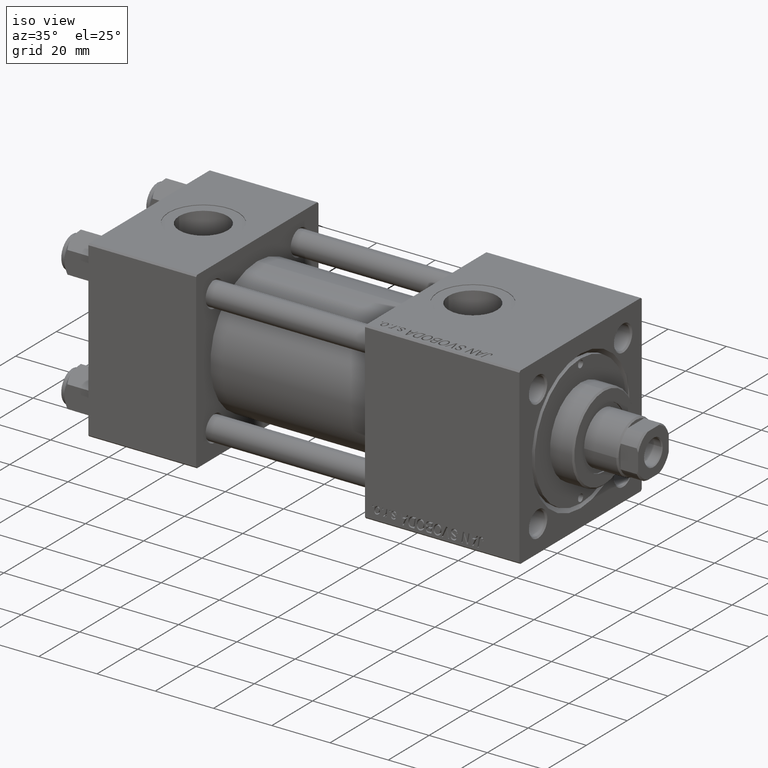
[diagram: clean part render]
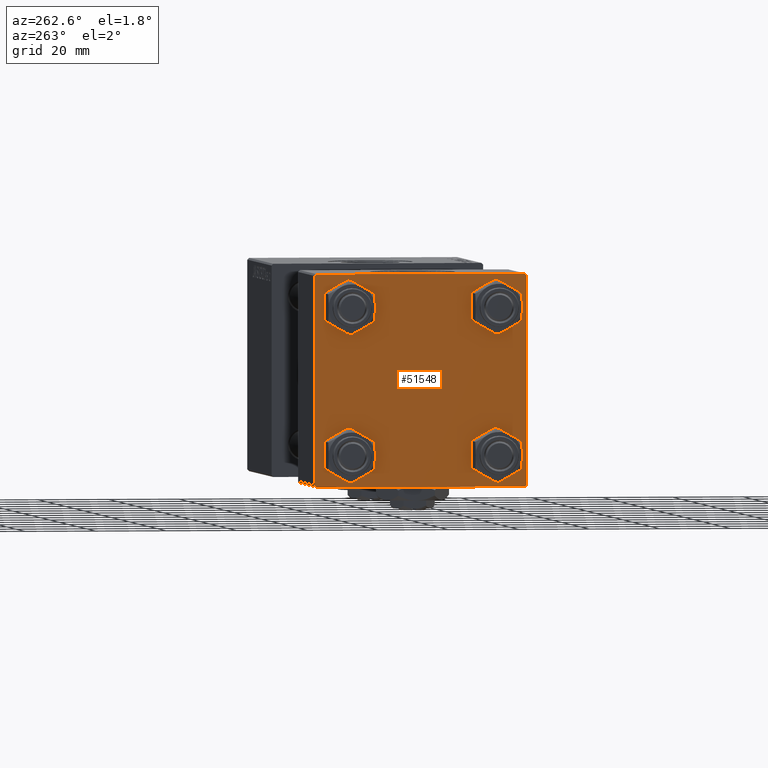
[diagram: tour spotlight — one face highlighted and labeled with its STEP entity id]
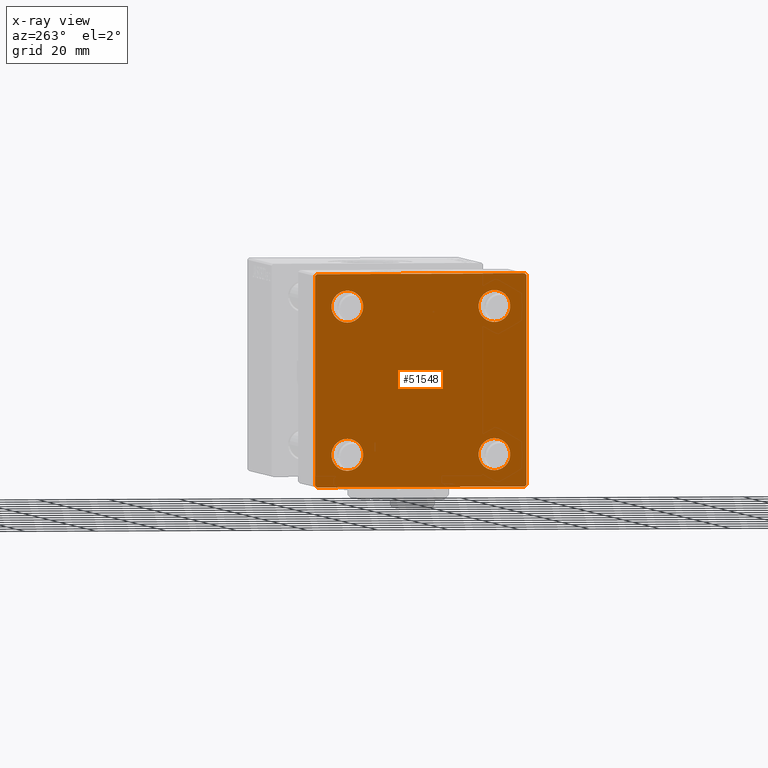
[diagram: x-ray of the same camera — body ghosted, this tour face saturated]
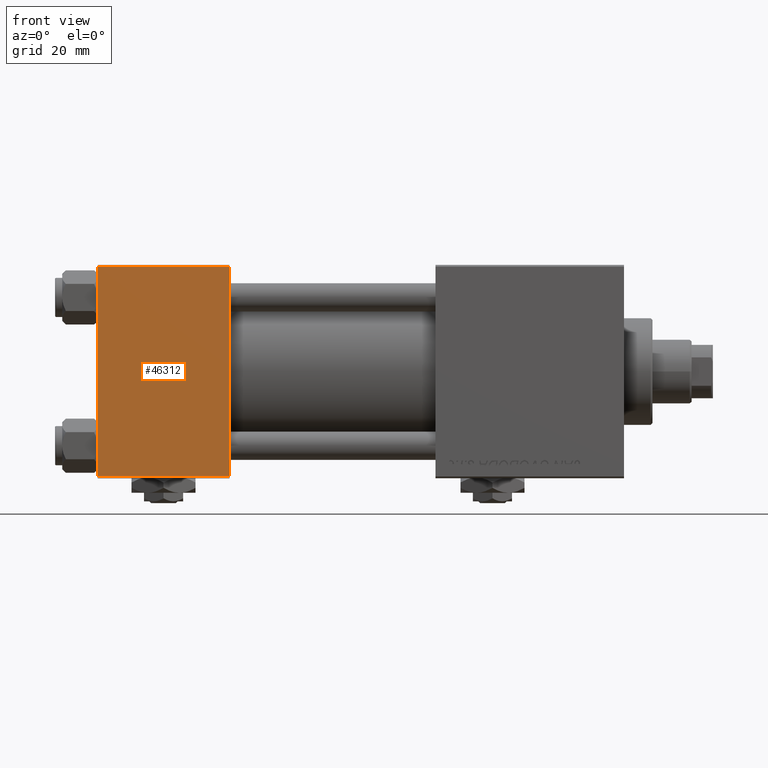
[diagram: tour spotlight — one face highlighted and labeled with its STEP entity id]
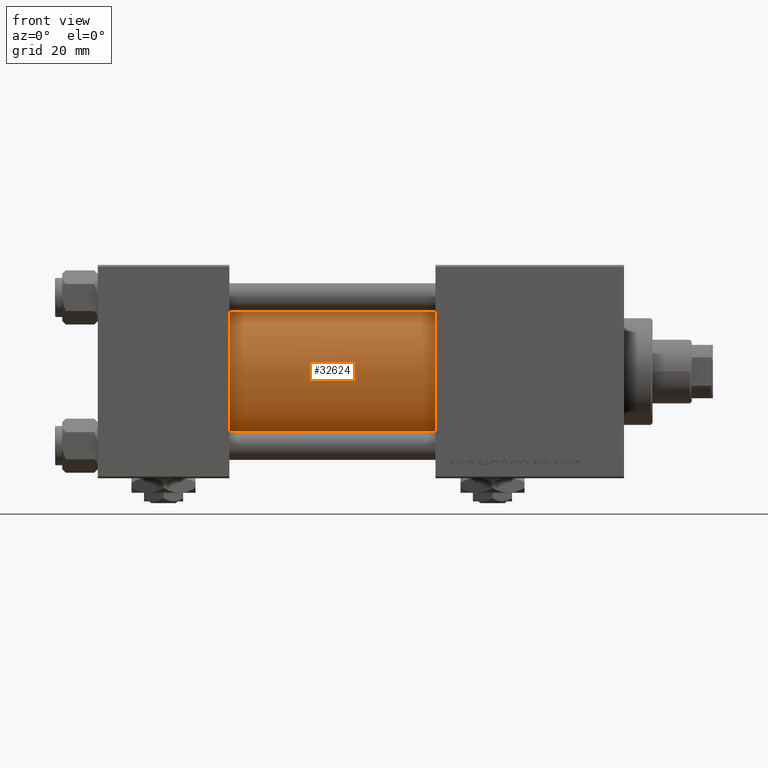
[diagram: tour spotlight — one face highlighted and labeled with its STEP entity id]
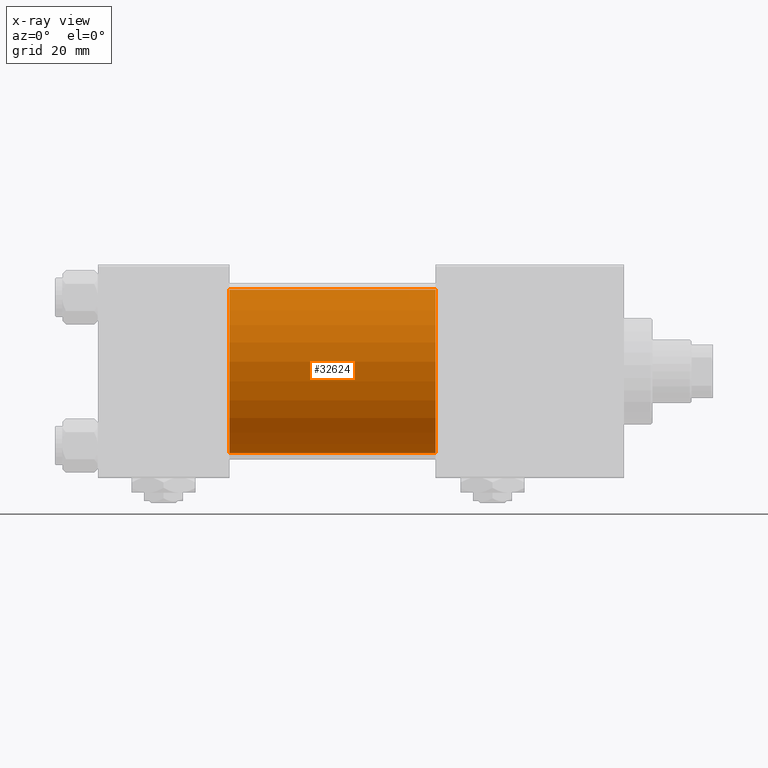
[diagram: x-ray of the same camera — body ghosted, this tour face saturated]
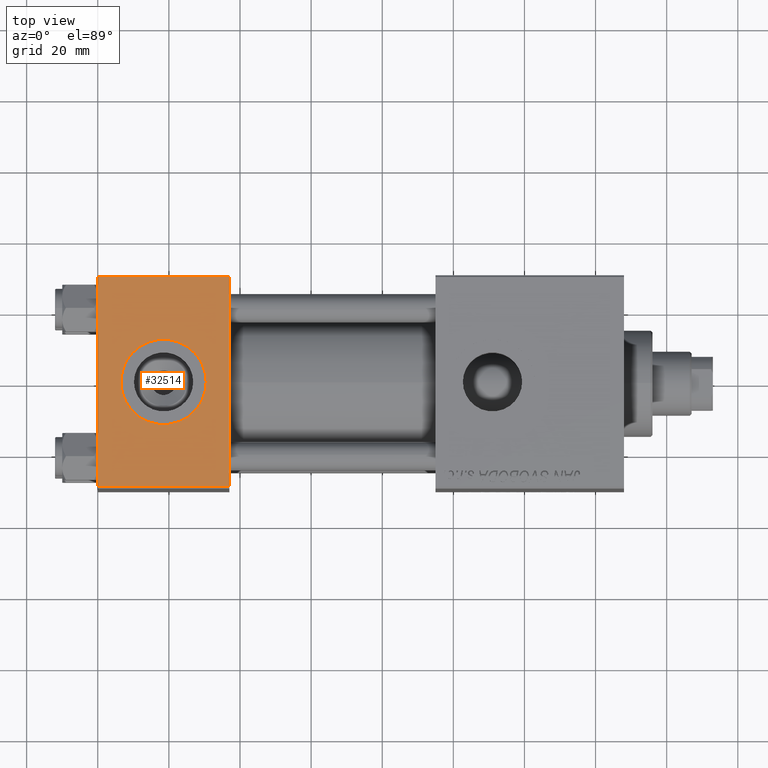
[diagram: tour spotlight — one face highlighted and labeled with its STEP entity id]
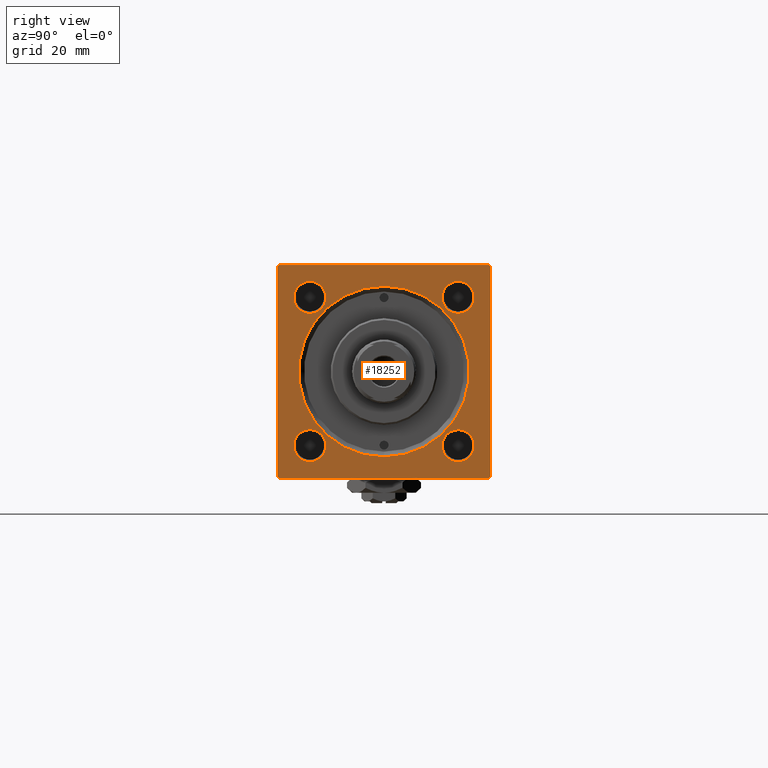
[diagram: tour spotlight — one face highlighted and labeled with its STEP entity id]
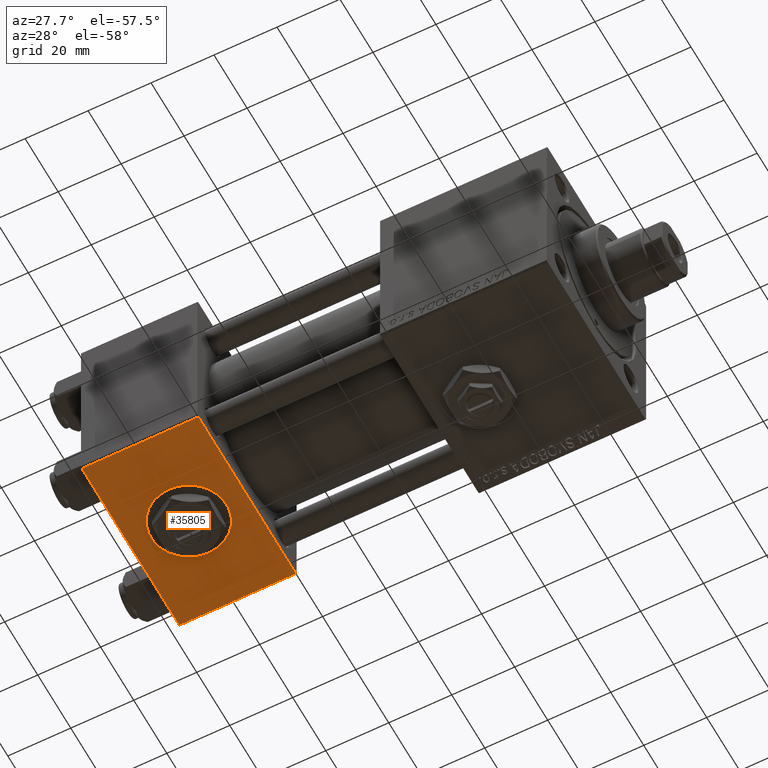
[diagram: tour spotlight — one face highlighted and labeled with its STEP entity id]
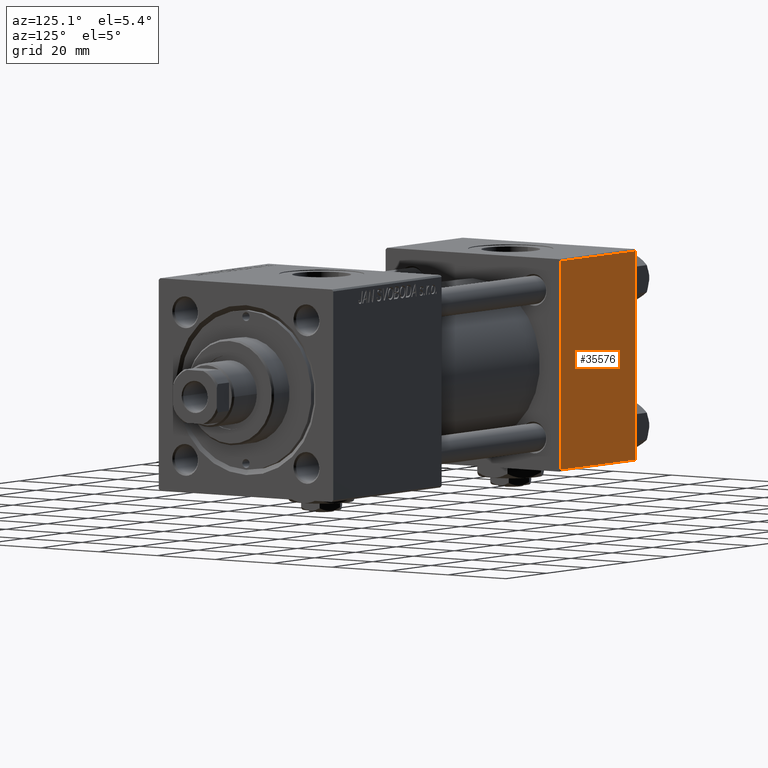
[diagram: tour spotlight — one face highlighted and labeled with its STEP entity id]
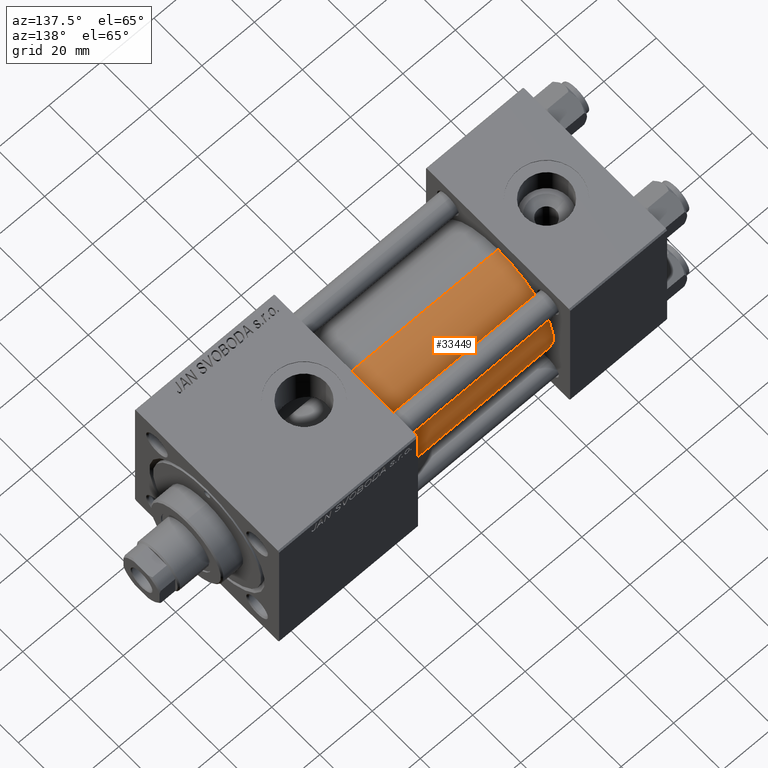
[diagram: tour spotlight — one face highlighted and labeled with its STEP entity id]
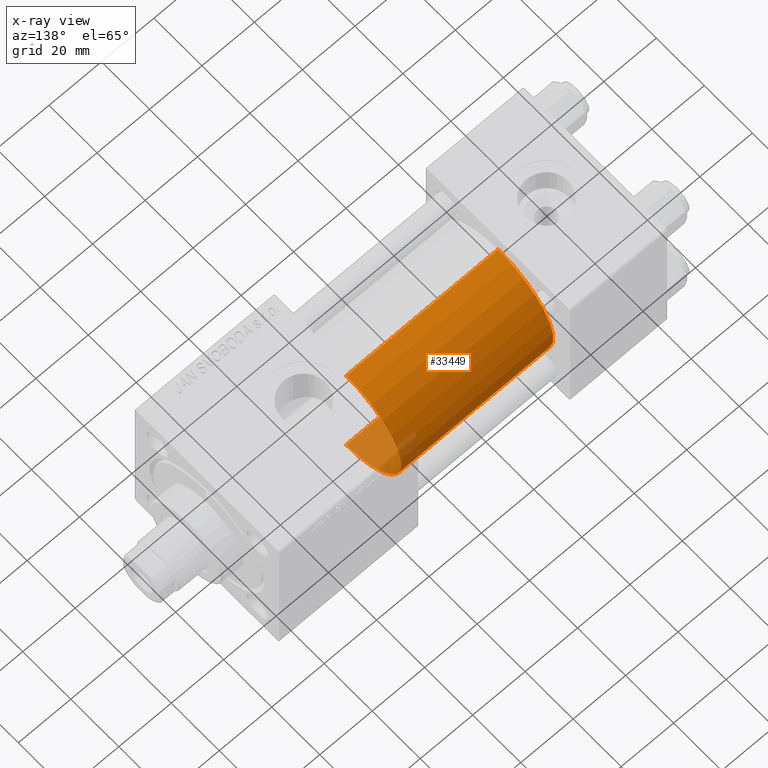
[diagram: x-ray of the same camera — body ghosted, this tour face saturated]
A machine part: a face-by-face anatomy tour. The part has 1256 B-rep faces; the first image is the clean iso view, then the 8 largest visible faces are spotlighted one at a time (largest first), each with its STEP entity span.

Face 1 — auxiliary view, entity #51548. An x-ray twin of the same camera follows (body ghosted, this face saturated) — the face is partly hidden behind the body. In plain terms, the highlighted planar face has unit normal (-1, 0, 0).
Definition (entity closure, byte-faithful):
#340 = ORIENTED_EDGE ( 'NONE', *, *, #52001, .T. ) ;
#379 = EDGE_LOOP ( 'NONE', ( #22754, #35350 ) ) ;
#528 = ORIENTED_EDGE ( 'NONE', *, *, #39811, .T. ) ;
#784 = CARTESIAN_POINT ( 'NONE',  ( 0.000000000000000000, -29.50000000000000000, -30.00000000000000711 ) ) ;
#1900 = DIRECTION ( 'NONE',  ( 0.000000000000000000, -0.7071067811865474617, 0.7071067811865474617 ) ) ;
#2128 = VERTEX_POINT ( 'NONE', #10008 ) ;
#2637 = EDGE_CURVE ( 'NONE', #37914, #6135, #29217, .T. ) ;
#2996 = ORIENTED_EDGE ( 'NONE', *, *, #17362, .T. ) ;
#4506 = EDGE_CURVE ( 'NONE', #25373, #28655, #20069, .T. ) ;
#4970 = VERTEX_POINT ( 'NONE', #18063 ) ;
#5942 = DIRECTION ( 'NONE',  ( -1.000000000000000000, 0.000000000000000000, -0.000000000000000000 ) ) ;
#6103 = EDGE_CURVE ( 'NONE', #12463, #23839, #35269, .T. ) ;
#6135 = VERTEX_POINT ( 'NONE', #9384 ) ;
#6545 = VECTOR ( 'NONE', #16298, 999.9999999999998863 ) ;
#6995 = EDGE_CURVE ( 'NONE', #45923, #25373, #22163, .T. ) ;
#7185 = LINE ( 'NONE', #11412, #45875 ) ;
#7628 = CARTESIAN_POINT ( 'NONE',  ( 0.000000000000000000, 20.84999999999999787, 25.35000000000001918 ) ) ;
#7951 = CIRCLE ( 'NONE', #13878, 4.500000000000017764 ) ;
#8419 = DIRECTION ( 'NONE',  ( 0.000000000000000000, 0.000000000000000000, 1.000000000000000000 ) ) ;
#8854 = CARTESIAN_POINT ( 'NONE',  ( -0.000000000000000000, -29.74999999999999645, 29.74999999999999645 ) ) ;
#9384 = CARTESIAN_POINT ( 'NONE',  ( 0.000000000000000000, 20.84999999999999787, -16.34999999999998366 ) ) ;
#9691 = ORIENTED_EDGE ( 'NONE', *, *, #43137, .T. ) ;
#10008 = CARTESIAN_POINT ( 'NONE',  ( 0.000000000000000000, -30.00000000000000000, 29.49999999999999289 ) ) ;
#10224 = CARTESIAN_POINT ( 'NONE',  ( 0.000000000000000000, 29.74999999999957723, -29.75000000000040501 ) ) ;
#10683 = DIRECTION ( 'NONE',  ( 0.000000000000000000, -1.000000000000000000, -1.156482317317871725E-16 ) ) ;
#11143 = ORIENTED_EDGE ( 'NONE', *, *, #50892, .F. ) ;
#11275 = EDGE_LOOP ( 'NONE', ( #27339, #19895 ) ) ;
#11305 = EDGE_CURVE ( 'NONE', #25500, #38746, #25211, .T. ) ;
#11412 = CARTESIAN_POINT ( 'NONE',  ( 0.000000000000000000, -30.00000000000000000, 29.99999999999999289 ) ) ;
#11594 = FACE_BOUND ( 'NONE', #11275, .T. ) ;
#11882 = VECTOR ( 'NONE', #42295, 1000.000000000000114 ) ;
#12126 = FACE_OUTER_BOUND ( 'NONE', #27227, .T. ) ;
#12358 = VECTOR ( 'NONE', #10683, 1000.000000000000000 ) ;
#12463 = VERTEX_POINT ( 'NONE', #7628 ) ;
#12570 = DIRECTION ( 'NONE',  ( 0.000000000000000000, 0.000000000000000000, 1.000000000000000000 ) ) ;
#13878 = AXIS2_PLACEMENT_3D ( 'NONE', #19279, #51610, #8419 ) ;
#13910 = VECTOR ( 'NONE', #17069, 1000.000000000000114 ) ;
#14698 = LINE ( 'NONE', #50485, #11882 ) ;
#15005 = AXIS2_PLACEMENT_3D ( 'NONE', #29646, #45816, #17717 ) ;
#15498 = AXIS2_PLACEMENT_3D ( 'NONE', #37932, #36692, #12570 ) ;
#15567 = FACE_BOUND ( 'NONE', #18397, .T. ) ;
#15999 = ORIENTED_EDGE ( 'NONE', *, *, #35514, .T. ) ;
#16292 = CARTESIAN_POINT ( 'NONE',  ( 0.000000000000000000, 20.84999999999999787, 16.34999999999998366 ) ) ;
#16298 = DIRECTION ( 'NONE',  ( -0.000000000000000000, -0.7071067811865574537, -0.7071067811865376918 ) ) ;
#16351 = CIRCLE ( 'NONE', #15498, 4.500000000000017764 ) ;
#17069 = DIRECTION ( 'NONE',  ( -0.000000000000000000, 0.7071067811865474617, 0.7071067811865474617 ) ) ;
#17243 = ORIENTED_EDGE ( 'NONE', *, *, #26044, .T. ) ;
#17362 = EDGE_CURVE ( 'NONE', #4970, #23354, #19349, .T. ) ;
#17674 = EDGE_LOOP ( 'NONE', ( #2996, #15999 ) ) ;
#17717 = DIRECTION ( 'NONE',  ( 0.000000000000000000, 0.000000000000000000, 1.000000000000000000 ) ) ;
#17839 = AXIS2_PLACEMENT_3D ( 'NONE', #28938, #45106, #41135 ) ;
#17871 = ORIENTED_EDGE ( 'NONE', *, *, #47962, .T. ) ;
#18063 = CARTESIAN_POINT ( 'NONE',  ( 0.000000000000000000, -20.84999999999999076, 25.35000000000002274 ) ) ;
#18397 = EDGE_LOOP ( 'NONE', ( #17871, #48835 ) ) ;
#19066 = AXIS2_PLACEMENT_3D ( 'NONE', #40665, #20512, #41454 ) ;
#19279 = CARTESIAN_POINT ( 'NONE',  ( 0.000000000000000000, 20.84999999999999787, 20.85000000000000142 ) ) ;
#19349 = CIRCLE ( 'NONE', #31202, 4.500000000000017764 ) ;
#19895 = ORIENTED_EDGE ( 'NONE', *, *, #37725, .T. ) ;
#20069 = LINE ( 'NONE', #39435, #42834 ) ;
#20180 = VERTEX_POINT ( 'NONE', #20570 ) ;
#20226 = CARTESIAN_POINT ( 'NONE',  ( 0.000000000000000000, -20.84999999999999076, 20.85000000000000497 ) ) ;
#20512 = DIRECTION ( 'NONE',  ( 1.000000000000000000, -0.000000000000000000, 0.000000000000000000 ) ) ;
#20570 = CARTESIAN_POINT ( 'NONE',  ( 0.000000000000000000, 29.49999999999999289, 30.00000000000000000 ) ) ;
#20727 = CIRCLE ( 'NONE', #44408, 4.500000000000017764 ) ;
#21591 = DIRECTION ( 'NONE',  ( -0.000000000000000000, 0.000000000000000000, 1.000000000000000000 ) ) ;
#22163 = LINE ( 'NONE', #10224, #6545 ) ;
#22754 = ORIENTED_EDGE ( 'NONE', *, *, #26659, .T. ) ;
#23354 = VERTEX_POINT ( 'NONE', #47624 ) ;
#23397 = VECTOR ( 'NONE', #38480, 1000.000000000000000 ) ;
#23839 = VERTEX_POINT ( 'NONE', #16292 ) ;
#24730 = DIRECTION ( 'NONE',  ( 1.000000000000000000, -0.000000000000000000, 0.000000000000000000 ) ) ;
#25211 = CIRCLE ( 'NONE', #15005, 4.500000000000017764 ) ;
#25373 = VERTEX_POINT ( 'NONE', #31394 ) ;
#25500 = VERTEX_POINT ( 'NONE', #44635 ) ;
#25757 = CARTESIAN_POINT ( 'NONE',  ( 0.000000000000000000, -29.49999999999998579, 29.99999999999999289 ) ) ;
#26044 = EDGE_CURVE ( 'NONE', #20180, #47986, #14698, .T. ) ;
#26659 = EDGE_CURVE ( 'NONE', #38746, #25500, #49982, .T. ) ;
#26823 = AXIS2_PLACEMENT_3D ( 'NONE', #46745, #5942, #21591 ) ;
#27227 = EDGE_LOOP ( 'NONE', ( #340, #47579, #43162, #528, #32252, #9691, #11143, #17243 ) ) ;
#27339 = ORIENTED_EDGE ( 'NONE', *, *, #6103, .T. ) ;
#27599 = DIRECTION ( 'NONE',  ( 0.000000000000000000, 0.000000000000000000, -1.000000000000000000 ) ) ;
#28655 = VERTEX_POINT ( 'NONE', #784 ) ;
#28938 = CARTESIAN_POINT ( 'NONE',  ( 0.000000000000000000, -20.84999999999999076, -20.85000000000000497 ) ) ;
#28964 = DIRECTION ( 'NONE',  ( 0.000000000000000000, 0.000000000000000000, 1.000000000000000000 ) ) ;
#29217 = CIRCLE ( 'NONE', #19066, 4.500000000000017764 ) ;
#29356 = EDGE_CURVE ( 'NONE', #2128, #42830, #7185, .T. ) ;
#29646 = CARTESIAN_POINT ( 'NONE',  ( 0.000000000000000000, -20.84999999999999076, -20.85000000000000497 ) ) ;
#30046 = VECTOR ( 'NONE', #1900, 1000.000000000000114 ) ;
#30537 = LINE ( 'NONE', #38235, #30046 ) ;
#31202 = AXIS2_PLACEMENT_3D ( 'NONE', #20226, #24730, #28964 ) ;
#31357 = CARTESIAN_POINT ( 'NONE',  ( 0.000000000000000000, 29.99999999999999289, 30.00000000000000000 ) ) ;
#31394 = CARTESIAN_POINT ( 'NONE',  ( 0.000000000000000000, 29.49999999999997868, -30.00000000000000000 ) ) ;
#31422 = DIRECTION ( 'NONE',  ( 0.000000000000000000, 0.000000000000000000, 1.000000000000000000 ) ) ;
#31888 = AXIS2_PLACEMENT_3D ( 'NONE', #39626, #43858, #47557 ) ;
#32252 = ORIENTED_EDGE ( 'NONE', *, *, #29356, .F. ) ;
#32279 = FACE_BOUND ( 'NONE', #17674, .T. ) ;
#33297 = CARTESIAN_POINT ( 'NONE',  ( 0.000000000000000000, -30.00000000000000000, -29.50000000000001776 ) ) ;
#35137 = CARTESIAN_POINT ( 'NONE',  ( 0.000000000000000000, 20.84999999999999787, -25.35000000000001918 ) ) ;
#35269 = CIRCLE ( 'NONE', #31888, 4.500000000000017764 ) ;
#35350 = ORIENTED_EDGE ( 'NONE', *, *, #11305, .T. ) ;
#35514 = EDGE_CURVE ( 'NONE', #23354, #4970, #16351, .T. ) ;
#36692 = DIRECTION ( 'NONE',  ( 1.000000000000000000, -0.000000000000000000, 0.000000000000000000 ) ) ;
#37725 = EDGE_CURVE ( 'NONE', #23839, #12463, #7951, .T. ) ;
#37914 = VERTEX_POINT ( 'NONE', #35137 ) ;
#37932 = CARTESIAN_POINT ( 'NONE',  ( 0.000000000000000000, -20.84999999999999076, 20.85000000000000497 ) ) ;
#38235 = CARTESIAN_POINT ( 'NONE',  ( 0.000000000000000000, -29.75000000000001066, -29.75000000000001066 ) ) ;
#38480 = DIRECTION ( 'NONE',  ( 0.000000000000000000, 0.000000000000000000, -1.000000000000000000 ) ) ;
#38746 = VERTEX_POINT ( 'NONE', #43608 ) ;
#39052 = LINE ( 'NONE', #31357, #12358 ) ;
#39435 = CARTESIAN_POINT ( 'NONE',  ( 0.000000000000000000, 29.99999999999999289, -30.00000000000000000 ) ) ;
#39626 = CARTESIAN_POINT ( 'NONE',  ( 0.000000000000000000, 20.84999999999999787, 20.85000000000000142 ) ) ;
#39811 = EDGE_CURVE ( 'NONE', #28655, #42830, #30537, .T. ) ;
#40665 = CARTESIAN_POINT ( 'NONE',  ( 0.000000000000000000, 20.84999999999999787, -20.85000000000000142 ) ) ;
#41135 = DIRECTION ( 'NONE',  ( 0.000000000000000000, 0.000000000000000000, 1.000000000000000000 ) ) ;
#41426 = CARTESIAN_POINT ( 'NONE',  ( 0.000000000000000000, 29.99999999999999289, 30.00000000000000000 ) ) ;
#41454 = DIRECTION ( 'NONE',  ( 0.000000000000000000, 0.000000000000000000, 1.000000000000000000 ) ) ;
#42295 = DIRECTION ( 'NONE',  ( 0.000000000000000000, 0.7071067811865474617, -0.7071067811865474617 ) ) ;
#42830 = VERTEX_POINT ( 'NONE', #33297 ) ;
#42834 = VECTOR ( 'NONE', #48159, 1000.000000000000000 ) ;
#43102 = CARTESIAN_POINT ( 'NONE',  ( 0.000000000000000000, 20.84999999999999787, -20.85000000000000142 ) ) ;
#43137 = EDGE_CURVE ( 'NONE', #2128, #50316, #45166, .T. ) ;
#43162 = ORIENTED_EDGE ( 'NONE', *, *, #4506, .T. ) ;
#43605 = DIRECTION ( 'NONE',  ( 1.000000000000000000, -0.000000000000000000, 0.000000000000000000 ) ) ;
#43608 = CARTESIAN_POINT ( 'NONE',  ( 0.000000000000000000, -20.84999999999999076, -16.34999999999998721 ) ) ;
#43858 = DIRECTION ( 'NONE',  ( 1.000000000000000000, -0.000000000000000000, 0.000000000000000000 ) ) ;
#43941 = PLANE ( 'NONE',  #26823 ) ;
#44408 = AXIS2_PLACEMENT_3D ( 'NONE', #43102, #43605, #31422 ) ;
#44635 = CARTESIAN_POINT ( 'NONE',  ( 0.000000000000000000, -20.84999999999999076, -25.35000000000002274 ) ) ;
#45106 = DIRECTION ( 'NONE',  ( 1.000000000000000000, -0.000000000000000000, 0.000000000000000000 ) ) ;
#45166 = LINE ( 'NONE', #8854, #13910 ) ;
#45816 = DIRECTION ( 'NONE',  ( 1.000000000000000000, -0.000000000000000000, 0.000000000000000000 ) ) ;
#45875 = VECTOR ( 'NONE', #27599, 1000.000000000000000 ) ;
#45923 = VERTEX_POINT ( 'NONE', #50085 ) ;
#46436 = LINE ( 'NONE', #41426, #23397 ) ;
#46745 = CARTESIAN_POINT ( 'NONE',  ( 0.000000000000000000, 0.000000000000000000, 0.000000000000000000 ) ) ;
#47557 = DIRECTION ( 'NONE',  ( 0.000000000000000000, 0.000000000000000000, 1.000000000000000000 ) ) ;
#47575 = CARTESIAN_POINT ( 'NONE',  ( 0.000000000000000000, 29.99999999999999289, 29.50000000000000000 ) ) ;
#47579 = ORIENTED_EDGE ( 'NONE', *, *, #6995, .T. ) ;
#47624 = CARTESIAN_POINT ( 'NONE',  ( 0.000000000000000000, -20.84999999999999076, 16.34999999999998721 ) ) ;
#47962 = EDGE_CURVE ( 'NONE', #6135, #37914, #20727, .T. ) ;
#47986 = VERTEX_POINT ( 'NONE', #47575 ) ;
#48159 = DIRECTION ( 'NONE',  ( 0.000000000000000000, -1.000000000000000000, -1.156482317317871725E-16 ) ) ;
#48431 = FACE_BOUND ( 'NONE', #379, .T. ) ;
#48835 = ORIENTED_EDGE ( 'NONE', *, *, #2637, .T. ) ;
#49982 = CIRCLE ( 'NONE', #17839, 4.500000000000017764 ) ;
#50085 = CARTESIAN_POINT ( 'NONE',  ( 0.000000000000000000, 29.99999999999999289, -29.50000000000000000 ) ) ;
#50316 = VERTEX_POINT ( 'NONE', #25757 ) ;
#50485 = CARTESIAN_POINT ( 'NONE',  ( 0.000000000000000000, 29.74999999999999645, 29.74999999999999645 ) ) ;
#50892 = EDGE_CURVE ( 'NONE', #20180, #50316, #39052, .T. ) ;
#51548 = ADVANCED_FACE ( 'NONE', ( #32279, #48431, #15567, #11594, #12126 ), #43941, .T. ) ;
#51610 = DIRECTION ( 'NONE',  ( 1.000000000000000000, -0.000000000000000000, 0.000000000000000000 ) ) ;
#52001 = EDGE_CURVE ( 'NONE', #47986, #45923, #46436, .T. ) ;

Face 2 — front view, entity #46312. In plain terms, the highlighted planar face has unit normal (0, 1, 0).
Definition (entity closure, byte-faithful):
#593 = EDGE_CURVE ( 'NONE', #37588, #2128, #50921, .T. ) ;
#2128 = VERTEX_POINT ( 'NONE', #10008 ) ;
#3817 = EDGE_LOOP ( 'NONE', ( #19174, #38354, #23068, #15707 ) ) ;
#7185 = LINE ( 'NONE', #11412, #45875 ) ;
#9201 = VECTOR ( 'NONE', #50715, 1000.000000000000000 ) ;
#9374 = FACE_OUTER_BOUND ( 'NONE', #3817, .T. ) ;
#9664 = CARTESIAN_POINT ( 'NONE',  ( 37.00000000000000000, -30.00000000000000000, 29.99999999999999289 ) ) ;
#10008 = CARTESIAN_POINT ( 'NONE',  ( 0.000000000000000000, -30.00000000000000000, 29.49999999999999289 ) ) ;
#11412 = CARTESIAN_POINT ( 'NONE',  ( 0.000000000000000000, -30.00000000000000000, 29.99999999999999289 ) ) ;
#12931 = EDGE_CURVE ( 'NONE', #42830, #20368, #50448, .T. ) ;
#14094 = CARTESIAN_POINT ( 'NONE',  ( 37.00000000000000000, -30.00000000000000000, 29.49999999999999289 ) ) ;
#15707 = ORIENTED_EDGE ( 'NONE', *, *, #593, .T. ) ;
#16451 = AXIS2_PLACEMENT_3D ( 'NONE', #25544, #21054, #37728 ) ;
#17058 = CARTESIAN_POINT ( 'NONE',  ( 37.00000000000000000, -30.00000000000000000, -29.50000000000001776 ) ) ;
#18405 = DIRECTION ( 'NONE',  ( 0.000000000000000000, 0.000000000000000000, -1.000000000000000000 ) ) ;
#19174 = ORIENTED_EDGE ( 'NONE', *, *, #29356, .T. ) ;
#20368 = VERTEX_POINT ( 'NONE', #17058 ) ;
#21054 = DIRECTION ( 'NONE',  ( -0.000000000000000000, 1.000000000000000000, 0.000000000000000000 ) ) ;
#23068 = ORIENTED_EDGE ( 'NONE', *, *, #50130, .F. ) ;
#25544 = CARTESIAN_POINT ( 'NONE',  ( 37.00000000000000000, -30.00000000000000000, 29.99999999999999289 ) ) ;
#27599 = DIRECTION ( 'NONE',  ( 0.000000000000000000, 0.000000000000000000, -1.000000000000000000 ) ) ;
#29356 = EDGE_CURVE ( 'NONE', #2128, #42830, #7185, .T. ) ;
#30007 = VECTOR ( 'NONE', #35034, 1000.000000000000000 ) ;
#30694 = CARTESIAN_POINT ( 'NONE',  ( 37.00000000000000000, -30.00000000000000000, 29.49999999999999289 ) ) ;
#32686 = VECTOR ( 'NONE', #18405, 1000.000000000000000 ) ;
#33297 = CARTESIAN_POINT ( 'NONE',  ( 0.000000000000000000, -30.00000000000000000, -29.50000000000001776 ) ) ;
#33497 = PLANE ( 'NONE',  #16451 ) ;
#35034 = DIRECTION ( 'NONE',  ( -1.000000000000000000, 0.000000000000000000, 0.000000000000000000 ) ) ;
#37588 = VERTEX_POINT ( 'NONE', #30694 ) ;
#37728 = DIRECTION ( 'NONE',  ( 0.000000000000000000, -0.000000000000000000, 1.000000000000000000 ) ) ;
#38354 = ORIENTED_EDGE ( 'NONE', *, *, #12931, .T. ) ;
#42258 = CARTESIAN_POINT ( 'NONE',  ( 37.00000000000000000, -30.00000000000000000, -29.50000000000001776 ) ) ;
#42830 = VERTEX_POINT ( 'NONE', #33297 ) ;
#45875 = VECTOR ( 'NONE', #27599, 1000.000000000000000 ) ;
#45981 = LINE ( 'NONE', #9664, #32686 ) ;
#46312 = ADVANCED_FACE ( 'NONE', ( #9374 ), #33497, .F. ) ;
#50130 = EDGE_CURVE ( 'NONE', #37588, #20368, #45981, .T. ) ;
#50448 = LINE ( 'NONE', #42258, #9201 ) ;
#50715 = DIRECTION ( 'NONE',  ( 1.000000000000000000, 0.000000000000000000, 0.000000000000000000 ) ) ;
#50921 = LINE ( 'NONE', #14094, #30007 ) ;

Face 3 — front view, entity #32624. An x-ray twin of the same camera follows (body ghosted, this face saturated) — the face is partly hidden behind the body. In plain terms, the highlighted cylindrical surface (partial cylindrical patch) has radius 23 mm, axis along (-1, -0, -0).
Definition (entity closure, byte-faithful):
#617 = DIRECTION ( 'NONE',  ( 1.000000000000000000, -0.000000000000000000, 0.000000000000000000 ) ) ;
#1824 = LINE ( 'NONE', #5295, #11713 ) ;
#3639 = CARTESIAN_POINT ( 'NONE',  ( 95.00000000000000000, 2.146024240737012665E-16, -23.00000000000000000 ) ) ;
#3661 = AXIS2_PLACEMENT_3D ( 'NONE', #25287, #29513, #8844 ) ;
#5295 = CARTESIAN_POINT ( 'NONE',  ( 95.00000000000000000, 2.146024240737012665E-16, -23.00000000000000000 ) ) ;
#5351 = VERTEX_POINT ( 'NONE', #3639 ) ;
#6187 = DIRECTION ( 'NONE',  ( 1.000000000000000000, 0.000000000000000000, 0.000000000000000000 ) ) ;
#7256 = EDGE_CURVE ( 'NONE', #30827, #5351, #31925, .T. ) ;
#8844 = DIRECTION ( 'NONE',  ( 0.000000000000000000, 0.000000000000000000, 1.000000000000000000 ) ) ;
#10680 = DIRECTION ( 'NONE',  ( 0.000000000000000000, 0.000000000000000000, -1.000000000000000000 ) ) ;
#11713 = VECTOR ( 'NONE', #25972, 1000.000000000000000 ) ;
#13194 = CARTESIAN_POINT ( 'NONE',  ( 95.00000000000000000, -2.602085213965210642E-15, 23.00000000000000000 ) ) ;
#13336 = FACE_OUTER_BOUND ( 'NONE', #48128, .T. ) ;
#13470 = EDGE_CURVE ( 'NONE', #5351, #40758, #1824, .T. ) ;
#15150 = CARTESIAN_POINT ( 'NONE',  ( 37.00000000000000000, -2.602085213965210642E-15, 23.00000000000000000 ) ) ;
#16541 = EDGE_CURVE ( 'NONE', #30827, #20758, #23630, .T. ) ;
#20758 = VERTEX_POINT ( 'NONE', #15150 ) ;
#21454 = ORIENTED_EDGE ( 'NONE', *, *, #7256, .F. ) ;
#23630 = LINE ( 'NONE', #39803, #31160 ) ;
#25218 = CARTESIAN_POINT ( 'NONE',  ( 37.00000000000000000, 2.146024240737012665E-16, -23.00000000000000000 ) ) ;
#25287 = CARTESIAN_POINT ( 'NONE',  ( 95.00000000000000000, -2.602085213965210642E-15, 0.000000000000000000 ) ) ;
#25972 = DIRECTION ( 'NONE',  ( -1.000000000000000000, -0.000000000000000000, -0.000000000000000000 ) ) ;
#26088 = CARTESIAN_POINT ( 'NONE',  ( 95.00000000000000000, -2.602085213965210642E-15, 0.000000000000000000 ) ) ;
#27460 = AXIS2_PLACEMENT_3D ( 'NONE', #36956, #617, #40405 ) ;
#28295 = CIRCLE ( 'NONE', #27460, 23.00000000000000000 ) ;
#29513 = DIRECTION ( 'NONE',  ( -1.000000000000000000, -0.000000000000000000, -0.000000000000000000 ) ) ;
#30827 = VERTEX_POINT ( 'NONE', #13194 ) ;
#30949 = ORIENTED_EDGE ( 'NONE', *, *, #43063, .T. ) ;
#30996 = ORIENTED_EDGE ( 'NONE', *, *, #13470, .F. ) ;
#31160 = VECTOR ( 'NONE', #51970, 1000.000000000000000 ) ;
#31925 = CIRCLE ( 'NONE', #38710, 23.00000000000000000 ) ;
#32624 = ADVANCED_FACE ( 'NONE', ( #13336 ), #44903, .T. ) ;
#35813 = ORIENTED_EDGE ( 'NONE', *, *, #16541, .T. ) ;
#36956 = CARTESIAN_POINT ( 'NONE',  ( 37.00000000000000000, -2.602085213965210642E-15, 0.000000000000000000 ) ) ;
#38710 = AXIS2_PLACEMENT_3D ( 'NONE', #26088, #6187, #10680 ) ;
#39803 = CARTESIAN_POINT ( 'NONE',  ( 95.00000000000000000, -2.602085213965210642E-15, 23.00000000000000000 ) ) ;
#40405 = DIRECTION ( 'NONE',  ( 0.000000000000000000, 0.000000000000000000, 1.000000000000000000 ) ) ;
#40758 = VERTEX_POINT ( 'NONE', #25218 ) ;
#43063 = EDGE_CURVE ( 'NONE', #20758, #40758, #28295, .T. ) ;
#44903 = CYLINDRICAL_SURFACE ( 'NONE', #3661, 23.00000000000000000 ) ;
#48128 = EDGE_LOOP ( 'NONE', ( #30996, #21454, #35813, #30949 ) ) ;
#51970 = DIRECTION ( 'NONE',  ( -1.000000000000000000, -0.000000000000000000, -0.000000000000000000 ) ) ;

Face 4 — top view, entity #32514. In plain terms, the highlighted planar face has unit normal (0, 0, -1).
Definition (entity closure, byte-faithful):
#596 = DIRECTION ( 'NONE',  ( 1.000000000000000000, 0.000000000000000000, 0.000000000000000000 ) ) ;
#610 = CARTESIAN_POINT ( 'NONE',  ( 6.499999999999997335, -1.999870792976790833E-15, 29.99999999999999645 ) ) ;
#1081 = DIRECTION ( 'NONE',  ( 0.000000000000000000, -1.000000000000000000, -1.156482317317871725E-16 ) ) ;
#2730 = VERTEX_POINT ( 'NONE', #610 ) ;
#2954 = LINE ( 'NONE', #35314, #14828 ) ;
#2967 = EDGE_CURVE ( 'NONE', #50316, #43481, #2954, .T. ) ;
#5593 = CARTESIAN_POINT ( 'NONE',  ( 37.00000000000000000, -29.49999999999998579, 29.99999999999999289 ) ) ;
#5795 = CIRCLE ( 'NONE', #28653, 12.00000000000000000 ) ;
#6010 = CARTESIAN_POINT ( 'NONE',  ( 18.50000000000000000, -3.469446951953614978E-15, 29.99999999999999645 ) ) ;
#7634 = EDGE_LOOP ( 'NONE', ( #13319, #21845, #47008, #17110 ) ) ;
#8804 = LINE ( 'NONE', #9065, #14892 ) ;
#9065 = CARTESIAN_POINT ( 'NONE',  ( 37.00000000000000000, 29.99999999999999289, 30.00000000000000000 ) ) ;
#9578 = AXIS2_PLACEMENT_3D ( 'NONE', #32180, #24216, #31131 ) ;
#9629 = EDGE_CURVE ( 'NONE', #22703, #2730, #5795, .T. ) ;
#10683 = DIRECTION ( 'NONE',  ( 0.000000000000000000, -1.000000000000000000, -1.156482317317871725E-16 ) ) ;
#12022 = PLANE ( 'NONE',  #9578 ) ;
#12320 = VERTEX_POINT ( 'NONE', #52273 ) ;
#12358 = VECTOR ( 'NONE', #10683, 1000.000000000000000 ) ;
#12705 = LINE ( 'NONE', #44788, #32107 ) ;
#13319 = ORIENTED_EDGE ( 'NONE', *, *, #50892, .T. ) ;
#14828 = VECTOR ( 'NONE', #51465, 1000.000000000000000 ) ;
#14892 = VECTOR ( 'NONE', #1081, 1000.000000000000000 ) ;
#14952 = FACE_OUTER_BOUND ( 'NONE', #7634, .T. ) ;
#17110 = ORIENTED_EDGE ( 'NONE', *, *, #22523, .T. ) ;
#19881 = CIRCLE ( 'NONE', #49511, 12.00000000000000000 ) ;
#20180 = VERTEX_POINT ( 'NONE', #20570 ) ;
#20570 = CARTESIAN_POINT ( 'NONE',  ( 0.000000000000000000, 29.49999999999999289, 30.00000000000000000 ) ) ;
#21845 = ORIENTED_EDGE ( 'NONE', *, *, #2967, .T. ) ;
#22523 = EDGE_CURVE ( 'NONE', #12320, #20180, #12705, .T. ) ;
#22703 = VERTEX_POINT ( 'NONE', #48666 ) ;
#23948 = FACE_BOUND ( 'NONE', #26442, .T. ) ;
#24216 = DIRECTION ( 'NONE',  ( 0.000000000000000000, 1.156482317317871725E-16, -1.000000000000000000 ) ) ;
#24637 = DIRECTION ( 'NONE',  ( -1.000000000000000000, 0.000000000000000000, 0.000000000000000000 ) ) ;
#25757 = CARTESIAN_POINT ( 'NONE',  ( 0.000000000000000000, -29.49999999999998579, 29.99999999999999289 ) ) ;
#26442 = EDGE_LOOP ( 'NONE', ( #38610, #43943 ) ) ;
#28653 = AXIS2_PLACEMENT_3D ( 'NONE', #40381, #28722, #596 ) ;
#28722 = DIRECTION ( 'NONE',  ( 0.000000000000000000, 0.000000000000000000, 1.000000000000000000 ) ) ;
#31131 = DIRECTION ( 'NONE',  ( 0.000000000000000000, 1.000000000000000000, 1.156482317317871725E-16 ) ) ;
#31357 = CARTESIAN_POINT ( 'NONE',  ( 0.000000000000000000, 29.99999999999999289, 30.00000000000000000 ) ) ;
#32107 = VECTOR ( 'NONE', #24637, 1000.000000000000000 ) ;
#32180 = CARTESIAN_POINT ( 'NONE',  ( 37.00000000000000000, 29.99999999999999289, 30.00000000000000000 ) ) ;
#32514 = ADVANCED_FACE ( 'NONE', ( #23948, #14952 ), #12022, .F. ) ;
#35314 = CARTESIAN_POINT ( 'NONE',  ( 37.00000000000000000, -29.50000000000000000, 29.99999999999999289 ) ) ;
#38610 = ORIENTED_EDGE ( 'NONE', *, *, #9629, .F. ) ;
#39052 = LINE ( 'NONE', #31357, #12358 ) ;
#40381 = CARTESIAN_POINT ( 'NONE',  ( 18.50000000000000000, -3.469446951953614978E-15, 29.99999999999999645 ) ) ;
#42066 = DIRECTION ( 'NONE',  ( 0.000000000000000000, 0.000000000000000000, 1.000000000000000000 ) ) ;
#43481 = VERTEX_POINT ( 'NONE', #5593 ) ;
#43943 = ORIENTED_EDGE ( 'NONE', *, *, #48800, .F. ) ;
#44788 = CARTESIAN_POINT ( 'NONE',  ( 0.000000000000000000, 29.49999999999999289, 30.00000000000000000 ) ) ;
#47008 = ORIENTED_EDGE ( 'NONE', *, *, #50370, .F. ) ;
#48666 = CARTESIAN_POINT ( 'NONE',  ( 30.50000000000000000, -3.469446951953614978E-15, 29.99999999999999645 ) ) ;
#48800 = EDGE_CURVE ( 'NONE', #2730, #22703, #19881, .T. ) ;
#49511 = AXIS2_PLACEMENT_3D ( 'NONE', #6010, #42066, #50002 ) ;
#50002 = DIRECTION ( 'NONE',  ( 1.000000000000000000, 0.000000000000000000, 0.000000000000000000 ) ) ;
#50316 = VERTEX_POINT ( 'NONE', #25757 ) ;
#50370 = EDGE_CURVE ( 'NONE', #12320, #43481, #8804, .T. ) ;
#50892 = EDGE_CURVE ( 'NONE', #20180, #50316, #39052, .T. ) ;
#51465 = DIRECTION ( 'NONE',  ( 1.000000000000000000, 0.000000000000000000, 0.000000000000000000 ) ) ;
#52273 = CARTESIAN_POINT ( 'NONE',  ( 37.00000000000000000, 29.49999999999999289, 30.00000000000000000 ) ) ;

Face 5 — right view, entity #18252. In plain terms, the highlighted planar face has unit normal (-1, 0, 0).
Definition (entity closure, byte-faithful):
#357 = EDGE_CURVE ( 'NONE', #17271, #50119, #15569, .T. ) ;
#1289 = EDGE_LOOP ( 'NONE', ( #29373, #45952 ) ) ;
#1401 = ORIENTED_EDGE ( 'NONE', *, *, #12507, .T. ) ;
#2094 = VECTOR ( 'NONE', #29340, 1000.000000000000114 ) ;
#2405 = VERTEX_POINT ( 'NONE', #16009 ) ;
#2430 = PLANE ( 'NONE',  #31238 ) ;
#3206 = FACE_BOUND ( 'NONE', #4994, .T. ) ;
#3463 = FACE_BOUND ( 'NONE', #15767, .T. ) ;
#3974 = VERTEX_POINT ( 'NONE', #47252 ) ;
#4612 = EDGE_CURVE ( 'NONE', #25212, #48424, #29607, .T. ) ;
#4688 = LINE ( 'NONE', #37029, #5639 ) ;
#4702 = DIRECTION ( 'NONE',  ( 0.000000000000000000, -1.000000000000000000, -1.156482317317871478E-16 ) ) ;
#4973 = DIRECTION ( 'NONE',  ( -1.000000000000000000, 0.000000000000000000, -0.000000000000000000 ) ) ;
#4994 = EDGE_LOOP ( 'NONE', ( #10301, #35747 ) ) ;
#5193 = LINE ( 'NONE', #13662, #41930 ) ;
#5639 = VECTOR ( 'NONE', #29065, 1000.000000000000114 ) ;
#5776 = VERTEX_POINT ( 'NONE', #6572 ) ;
#5822 = ORIENTED_EDGE ( 'NONE', *, *, #10691, .T. ) ;
#5974 = EDGE_CURVE ( 'NONE', #21259, #25212, #4688, .T. ) ;
#6228 = DIRECTION ( 'NONE',  ( -1.000000000000000000, 0.000000000000000000, -0.000000000000000000 ) ) ;
#6270 = AXIS2_PLACEMENT_3D ( 'NONE', #31073, #22335, #18630 ) ;
#6437 = CARTESIAN_POINT ( 'NONE',  ( 148.0000000000000000, 20.84999999999999787, 16.34999999999998366 ) ) ;
#6572 = CARTESIAN_POINT ( 'NONE',  ( 148.0000000000000000, -29.50000000000000000, -30.00000000000000000 ) ) ;
#6933 = DIRECTION ( 'NONE',  ( -1.000000000000000000, 0.000000000000000000, -0.000000000000000000 ) ) ;
#7625 = VERTEX_POINT ( 'NONE', #36057 ) ;
#7645 = ORIENTED_EDGE ( 'NONE', *, *, #44011, .F. ) ;
#7737 = CARTESIAN_POINT ( 'NONE',  ( 148.0000000000000000, 0.000000000000000000, 0.000000000000000000 ) ) ;
#7804 = VERTEX_POINT ( 'NONE', #14531 ) ;
#7915 = DIRECTION ( 'NONE',  ( -1.000000000000000000, 0.000000000000000000, -0.000000000000000000 ) ) ;
#8286 = CIRCLE ( 'NONE', #40449, 4.500000000000017764 ) ;
#8395 = CARTESIAN_POINT ( 'NONE',  ( 148.0000000000000000, 29.50000000000000000, 30.00000000000000000 ) ) ;
#8517 = DIRECTION ( 'NONE',  ( 0.000000000000000000, 0.000000000000000000, -1.000000000000000000 ) ) ;
#9284 = DIRECTION ( 'NONE',  ( 0.000000000000000000, 0.000000000000000000, 1.000000000000000000 ) ) ;
#9293 = LINE ( 'NONE', #29171, #46430 ) ;
#9851 = CARTESIAN_POINT ( 'NONE',  ( 148.0000000000000000, 30.00000000000000000, -29.49999999999997868 ) ) ;
#10101 = EDGE_CURVE ( 'NONE', #23015, #3974, #9293, .T. ) ;
#10301 = ORIENTED_EDGE ( 'NONE', *, *, #19775, .T. ) ;
#10642 = FACE_OUTER_BOUND ( 'NONE', #35478, .T. ) ;
#10691 = EDGE_CURVE ( 'NONE', #29148, #36546, #16727, .T. ) ;
#11105 = CARTESIAN_POINT ( 'NONE',  ( 148.0000000000000000, 2.939152317953652628E-15, 24.00000000000003908 ) ) ;
#11158 = DIRECTION ( 'NONE',  ( -0.000000000000000000, 0.000000000000000000, 1.000000000000000000 ) ) ;
#12110 = CARTESIAN_POINT ( 'NONE',  ( 148.0000000000000000, -30.00000000000000000, 29.49999999999999289 ) ) ;
#12270 = DIRECTION ( 'NONE',  ( 0.000000000000000000, 0.000000000000000000, 1.000000000000000000 ) ) ;
#12507 = EDGE_CURVE ( 'NONE', #12794, #7625, #8286, .T. ) ;
#12701 = AXIS2_PLACEMENT_3D ( 'NONE', #22396, #6228, #42544 ) ;
#12794 = VERTEX_POINT ( 'NONE', #21330 ) ;
#13662 = CARTESIAN_POINT ( 'NONE',  ( 148.0000000000000000, 30.00000000000000000, 30.00000000000000000 ) ) ;
#14439 = CARTESIAN_POINT ( 'NONE',  ( 148.0000000000000000, 30.00000000000000000, 29.50000000000000000 ) ) ;
#14531 = CARTESIAN_POINT ( 'NONE',  ( 148.0000000000000000, 29.50000000000000000, -29.99999999999999289 ) ) ;
#14878 = ORIENTED_EDGE ( 'NONE', *, *, #52397, .T. ) ;
#15139 = FACE_BOUND ( 'NONE', #1289, .T. ) ;
#15232 = EDGE_CURVE ( 'NONE', #3974, #5776, #28813, .T. ) ;
#15408 = DIRECTION ( 'NONE',  ( -1.000000000000000000, 0.000000000000000000, -0.000000000000000000 ) ) ;
#15569 = CIRCLE ( 'NONE', #51968, 4.500000000000017764 ) ;
#15767 = EDGE_LOOP ( 'NONE', ( #24612, #5822 ) ) ;
#15963 = ORIENTED_EDGE ( 'NONE', *, *, #37636, .T. ) ;
#16009 = CARTESIAN_POINT ( 'NONE',  ( 148.0000000000000000, 0.000000000000000000, -24.00000000000003908 ) ) ;
#16727 = CIRCLE ( 'NONE', #43799, 4.500000000000017764 ) ;
#16949 = CIRCLE ( 'NONE', #12701, 4.500000000000017764 ) ;
#17271 = VERTEX_POINT ( 'NONE', #47006 ) ;
#18248 = EDGE_CURVE ( 'NONE', #7625, #12794, #23626, .T. ) ;
#18252 = ADVANCED_FACE ( 'NONE', ( #30790, #3206, #38756, #3463, #15139, #10642 ), #2430, .F. ) ;
#18630 = DIRECTION ( 'NONE',  ( 0.000000000000000000, 0.000000000000000000, 1.000000000000000000 ) ) ;
#19553 = ORIENTED_EDGE ( 'NONE', *, *, #10101, .T. ) ;
#19775 = EDGE_CURVE ( 'NONE', #50119, #17271, #51581, .T. ) ;
#19800 = CIRCLE ( 'NONE', #6270, 4.500000000000017764 ) ;
#20068 = AXIS2_PLACEMENT_3D ( 'NONE', #20954, #37635, #9284 ) ;
#20182 = CARTESIAN_POINT ( 'NONE',  ( 148.0000000000000000, 20.84999999999999787, -20.85000000000000142 ) ) ;
#20268 = CARTESIAN_POINT ( 'NONE',  ( 148.0000000000000000, 30.00000000000000000, -29.99999999999999289 ) ) ;
#20954 = CARTESIAN_POINT ( 'NONE',  ( 148.0000000000000000, 20.84999999999999787, 20.85000000000000142 ) ) ;
#21071 = CIRCLE ( 'NONE', #24462, 24.00000000000003908 ) ;
#21259 = VERTEX_POINT ( 'NONE', #14439 ) ;
#21330 = CARTESIAN_POINT ( 'NONE',  ( 148.0000000000000000, -20.85000000000000142, -25.35000000000001918 ) ) ;
#21406 = ORIENTED_EDGE ( 'NONE', *, *, #41538, .F. ) ;
#21560 = VECTOR ( 'NONE', #36439, 1000.000000000000000 ) ;
#21658 = EDGE_CURVE ( 'NONE', #40906, #2405, #21071, .T. ) ;
#21765 = CARTESIAN_POINT ( 'NONE',  ( 148.0000000000000000, -30.00000000000000000, 29.49999999999999289 ) ) ;
#22311 = CARTESIAN_POINT ( 'NONE',  ( 148.0000000000000000, -20.85000000000000142, -20.85000000000000142 ) ) ;
#22335 = DIRECTION ( 'NONE',  ( -1.000000000000000000, 0.000000000000000000, -0.000000000000000000 ) ) ;
#22377 = CARTESIAN_POINT ( 'NONE',  ( 148.0000000000000000, -20.84999999999999432, 16.34999999999998366 ) ) ;
#22396 = CARTESIAN_POINT ( 'NONE',  ( 148.0000000000000000, 20.84999999999999787, -20.85000000000000142 ) ) ;
#22808 = ORIENTED_EDGE ( 'NONE', *, *, #47866, .T. ) ;
#23015 = VERTEX_POINT ( 'NONE', #21765 ) ;
#23626 = CIRCLE ( 'NONE', #43084, 4.500000000000017764 ) ;
#23753 = CARTESIAN_POINT ( 'NONE',  ( 148.0000000000000000, 0.000000000000000000, 0.000000000000000000 ) ) ;
#23878 = DIRECTION ( 'NONE',  ( 0.000000000000000000, 0.000000000000000000, 1.000000000000000000 ) ) ;
#24315 = LINE ( 'NONE', #40499, #2094 ) ;
#24462 = AXIS2_PLACEMENT_3D ( 'NONE', #7737, #15408, #31852 ) ;
#24612 = ORIENTED_EDGE ( 'NONE', *, *, #25309, .T. ) ;
#25212 = VERTEX_POINT ( 'NONE', #8395 ) ;
#25309 = EDGE_CURVE ( 'NONE', #36546, #29148, #16949, .T. ) ;
#26023 = CARTESIAN_POINT ( 'NONE',  ( 148.0000000000000000, 20.84999999999999787, 25.35000000000001918 ) ) ;
#26923 = ORIENTED_EDGE ( 'NONE', *, *, #5974, .T. ) ;
#27682 = AXIS2_PLACEMENT_3D ( 'NONE', #23753, #28532, #35955 ) ;
#28267 = VECTOR ( 'NONE', #48412, 1000.000000000000114 ) ;
#28532 = DIRECTION ( 'NONE',  ( -1.000000000000000000, 0.000000000000000000, -0.000000000000000000 ) ) ;
#28546 = CARTESIAN_POINT ( 'NONE',  ( 148.0000000000000000, -29.50000000000000000, -30.00000000000000000 ) ) ;
#28813 = LINE ( 'NONE', #28546, #43787 ) ;
#29065 = DIRECTION ( 'NONE',  ( 0.000000000000000000, -0.7071067811865474617, 0.7071067811865474617 ) ) ;
#29148 = VERTEX_POINT ( 'NONE', #45139 ) ;
#29171 = CARTESIAN_POINT ( 'NONE',  ( 148.0000000000000000, -30.00000000000000000, 29.99999999999999289 ) ) ;
#29340 = DIRECTION ( 'NONE',  ( -0.000000000000000000, 0.7071067811865474617, 0.7071067811865474617 ) ) ;
#29373 = ORIENTED_EDGE ( 'NONE', *, *, #41829, .T. ) ;
#29394 = CIRCLE ( 'NONE', #20068, 4.500000000000017764 ) ;
#29607 = LINE ( 'NONE', #45516, #48763 ) ;
#30790 = FACE_BOUND ( 'NONE', #45728, .T. ) ;
#31073 = CARTESIAN_POINT ( 'NONE',  ( 148.0000000000000000, 20.84999999999999787, 20.85000000000000142 ) ) ;
#31238 = AXIS2_PLACEMENT_3D ( 'NONE', #31567, #6933, #11158 ) ;
#31567 = CARTESIAN_POINT ( 'NONE',  ( 148.0000000000000000, 0.000000000000000000, 0.000000000000000000 ) ) ;
#31852 = DIRECTION ( 'NONE',  ( 0.000000000000000000, 0.000000000000000000, 1.000000000000000000 ) ) ;
#32538 = CARTESIAN_POINT ( 'NONE',  ( 148.0000000000000000, -20.85000000000000142, -20.85000000000000142 ) ) ;
#33329 = DIRECTION ( 'NONE',  ( 0.000000000000000000, 0.000000000000000000, 1.000000000000000000 ) ) ;
#33346 = ORIENTED_EDGE ( 'NONE', *, *, #15232, .T. ) ;
#33395 = CARTESIAN_POINT ( 'NONE',  ( 148.0000000000000000, -29.50000000000000000, 29.99999999999999289 ) ) ;
#33734 = DIRECTION ( 'NONE',  ( -1.000000000000000000, 0.000000000000000000, -0.000000000000000000 ) ) ;
#34170 = EDGE_LOOP ( 'NONE', ( #1401, #46875 ) ) ;
#35235 = CARTESIAN_POINT ( 'NONE',  ( 148.0000000000000000, -20.84999999999999432, 20.85000000000000142 ) ) ;
#35322 = CIRCLE ( 'NONE', #27682, 24.00000000000003908 ) ;
#35478 = EDGE_LOOP ( 'NONE', ( #19553, #33346, #7645, #22808, #21406, #26923, #35854, #15963 ) ) ;
#35565 = DIRECTION ( 'NONE',  ( -1.000000000000000000, 0.000000000000000000, -0.000000000000000000 ) ) ;
#35747 = ORIENTED_EDGE ( 'NONE', *, *, #357, .T. ) ;
#35854 = ORIENTED_EDGE ( 'NONE', *, *, #4612, .T. ) ;
#35955 = DIRECTION ( 'NONE',  ( 0.000000000000000000, 0.000000000000000000, 1.000000000000000000 ) ) ;
#36057 = CARTESIAN_POINT ( 'NONE',  ( 148.0000000000000000, -20.85000000000000142, -16.34999999999998366 ) ) ;
#36356 = AXIS2_PLACEMENT_3D ( 'NONE', #35235, #7915, #48450 ) ;
#36439 = DIRECTION ( 'NONE',  ( 0.000000000000000000, -1.000000000000000000, -1.156482317317871478E-16 ) ) ;
#36546 = VERTEX_POINT ( 'NONE', #50345 ) ;
#37029 = CARTESIAN_POINT ( 'NONE',  ( 148.0000000000000000, 29.50000000000000000, 30.00000000000000000 ) ) ;
#37525 = DIRECTION ( 'NONE',  ( 0.000000000000000000, 0.000000000000000000, -1.000000000000000000 ) ) ;
#37635 = DIRECTION ( 'NONE',  ( -1.000000000000000000, 0.000000000000000000, -0.000000000000000000 ) ) ;
#37636 = EDGE_CURVE ( 'NONE', #48424, #23015, #44187, .T. ) ;
#38370 = VERTEX_POINT ( 'NONE', #26023 ) ;
#38492 = DIRECTION ( 'NONE',  ( 0.000000000000000000, 0.000000000000000000, 1.000000000000000000 ) ) ;
#38756 = FACE_BOUND ( 'NONE', #34170, .T. ) ;
#40414 = LINE ( 'NONE', #20268, #21560 ) ;
#40449 = AXIS2_PLACEMENT_3D ( 'NONE', #32538, #4973, #33329 ) ;
#40499 = CARTESIAN_POINT ( 'NONE',  ( 148.0000000000000000, 30.00000000000000000, -29.49999999999999289 ) ) ;
#40906 = VERTEX_POINT ( 'NONE', #11105 ) ;
#41538 = EDGE_CURVE ( 'NONE', #21259, #52051, #5193, .T. ) ;
#41829 = EDGE_CURVE ( 'NONE', #2405, #40906, #35322, .T. ) ;
#41930 = VECTOR ( 'NONE', #37525, 1000.000000000000000 ) ;
#42544 = DIRECTION ( 'NONE',  ( 0.000000000000000000, 0.000000000000000000, 1.000000000000000000 ) ) ;
#43084 = AXIS2_PLACEMENT_3D ( 'NONE', #22311, #33734, #38492 ) ;
#43787 = VECTOR ( 'NONE', #48937, 1000.000000000000114 ) ;
#43799 = AXIS2_PLACEMENT_3D ( 'NONE', #20182, #35565, #23878 ) ;
#44011 = EDGE_CURVE ( 'NONE', #7804, #5776, #40414, .T. ) ;
#44101 = VERTEX_POINT ( 'NONE', #6437 ) ;
#44187 = LINE ( 'NONE', #12110, #28267 ) ;
#45139 = CARTESIAN_POINT ( 'NONE',  ( 148.0000000000000000, 20.84999999999999787, -16.34999999999998366 ) ) ;
#45516 = CARTESIAN_POINT ( 'NONE',  ( 148.0000000000000000, 30.00000000000000000, 30.00000000000000000 ) ) ;
#45728 = EDGE_LOOP ( 'NONE', ( #14878, #48781 ) ) ;
#45952 = ORIENTED_EDGE ( 'NONE', *, *, #21658, .T. ) ;
#46342 = EDGE_CURVE ( 'NONE', #38370, #44101, #19800, .T. ) ;
#46430 = VECTOR ( 'NONE', #8517, 1000.000000000000000 ) ;
#46875 = ORIENTED_EDGE ( 'NONE', *, *, #18248, .T. ) ;
#47006 = CARTESIAN_POINT ( 'NONE',  ( 148.0000000000000000, -20.84999999999999432, 25.35000000000001918 ) ) ;
#47252 = CARTESIAN_POINT ( 'NONE',  ( 148.0000000000000000, -30.00000000000000000, -29.49999999999998579 ) ) ;
#47866 = EDGE_CURVE ( 'NONE', #7804, #52051, #24315, .T. ) ;
#48412 = DIRECTION ( 'NONE',  ( -0.000000000000000000, -0.7071067811865474617, -0.7071067811865474617 ) ) ;
#48424 = VERTEX_POINT ( 'NONE', #33395 ) ;
#48450 = DIRECTION ( 'NONE',  ( 0.000000000000000000, 0.000000000000000000, 1.000000000000000000 ) ) ;
#48763 = VECTOR ( 'NONE', #4702, 1000.000000000000000 ) ;
#48781 = ORIENTED_EDGE ( 'NONE', *, *, #46342, .T. ) ;
#48838 = CARTESIAN_POINT ( 'NONE',  ( 148.0000000000000000, -20.84999999999999432, 20.85000000000000142 ) ) ;
#48937 = DIRECTION ( 'NONE',  ( 0.000000000000000000, 0.7071067811865474617, -0.7071067811865474617 ) ) ;
#50119 = VERTEX_POINT ( 'NONE', #22377 ) ;
#50345 = CARTESIAN_POINT ( 'NONE',  ( 148.0000000000000000, 20.84999999999999787, -25.35000000000001918 ) ) ;
#51044 = DIRECTION ( 'NONE',  ( -1.000000000000000000, 0.000000000000000000, -0.000000000000000000 ) ) ;
#51581 = CIRCLE ( 'NONE', #36356, 4.500000000000017764 ) ;
#51968 = AXIS2_PLACEMENT_3D ( 'NONE', #48838, #51044, #12270 ) ;
#52051 = VERTEX_POINT ( 'NONE', #9851 ) ;
#52397 = EDGE_CURVE ( 'NONE', #44101, #38370, #29394, .T. ) ;

Face 6 — auxiliary view, entity #35805. In plain terms, the highlighted planar face has unit normal (0, 0, -1).
Definition (entity closure, byte-faithful):
#775 = ORIENTED_EDGE ( 'NONE', *, *, #49105, .T. ) ;
#784 = CARTESIAN_POINT ( 'NONE',  ( 0.000000000000000000, -29.50000000000000000, -30.00000000000000711 ) ) ;
#2065 = CARTESIAN_POINT ( 'NONE',  ( 37.00000000000000000, 29.99999999999999289, -30.00000000000000000 ) ) ;
#4506 = EDGE_CURVE ( 'NONE', #25373, #28655, #20069, .T. ) ;
#4935 = EDGE_CURVE ( 'NONE', #9466, #20432, #52159, .T. ) ;
#5163 = CARTESIAN_POINT ( 'NONE',  ( 37.00000000000000000, 29.49999999999997868, -30.00000000000000000 ) ) ;
#5276 = DIRECTION ( 'NONE',  ( 0.000000000000000000, 1.156482317317871725E-16, -1.000000000000000000 ) ) ;
#5810 = EDGE_LOOP ( 'NONE', ( #13909, #775, #20755, #47593 ) ) ;
#6940 = EDGE_CURVE ( 'NONE', #17615, #28655, #22422, .T. ) ;
#8539 = CIRCLE ( 'NONE', #15281, 12.00000000000000178 ) ;
#8626 = LINE ( 'NONE', #5163, #31758 ) ;
#9466 = VERTEX_POINT ( 'NONE', #43054 ) ;
#9834 = AXIS2_PLACEMENT_3D ( 'NONE', #14075, #17545, #33194 ) ;
#13071 = CARTESIAN_POINT ( 'NONE',  ( 18.50000000000000355, -12.00000000000000000, -30.00000000000000000 ) ) ;
#13909 = ORIENTED_EDGE ( 'NONE', *, *, #4506, .F. ) ;
#14075 = CARTESIAN_POINT ( 'NONE',  ( 18.50000000000000355, 2.265018109976774967E-15, -30.00000000000000355 ) ) ;
#14650 = EDGE_LOOP ( 'NONE', ( #34785, #40871 ) ) ;
#14758 = CARTESIAN_POINT ( 'NONE',  ( 37.00000000000000000, 29.49999999999997868, -30.00000000000000000 ) ) ;
#15281 = AXIS2_PLACEMENT_3D ( 'NONE', #44312, #19407, #47493 ) ;
#17545 = DIRECTION ( 'NONE',  ( 0.000000000000000000, -1.734723475976806848E-16, -1.000000000000000000 ) ) ;
#17615 = VERTEX_POINT ( 'NONE', #40313 ) ;
#19407 = DIRECTION ( 'NONE',  ( 0.000000000000000000, -1.734723475976806848E-16, -1.000000000000000000 ) ) ;
#20069 = LINE ( 'NONE', #39435, #42834 ) ;
#20086 = VECTOR ( 'NONE', #26159, 1000.000000000000000 ) ;
#20432 = VERTEX_POINT ( 'NONE', #13071 ) ;
#20755 = ORIENTED_EDGE ( 'NONE', *, *, #25616, .T. ) ;
#21708 = PLANE ( 'NONE',  #32434 ) ;
#22422 = LINE ( 'NONE', #38336, #20086 ) ;
#22858 = LINE ( 'NONE', #35053, #33890 ) ;
#25172 = FACE_OUTER_BOUND ( 'NONE', #5810, .T. ) ;
#25373 = VERTEX_POINT ( 'NONE', #31394 ) ;
#25616 = EDGE_CURVE ( 'NONE', #45131, #17615, #22858, .T. ) ;
#26159 = DIRECTION ( 'NONE',  ( -1.000000000000000000, 0.000000000000000000, 0.000000000000000000 ) ) ;
#26492 = EDGE_CURVE ( 'NONE', #20432, #9466, #8539, .T. ) ;
#28655 = VERTEX_POINT ( 'NONE', #784 ) ;
#31394 = CARTESIAN_POINT ( 'NONE',  ( 0.000000000000000000, 29.49999999999997868, -30.00000000000000000 ) ) ;
#31758 = VECTOR ( 'NONE', #32219, 1000.000000000000000 ) ;
#32219 = DIRECTION ( 'NONE',  ( 1.000000000000000000, 0.000000000000000000, 0.000000000000000000 ) ) ;
#32434 = AXIS2_PLACEMENT_3D ( 'NONE', #2065, #5276, #33899 ) ;
#33194 = DIRECTION ( 'NONE',  ( 0.000000000000000000, 1.000000000000000000, -2.891205793294677833E-16 ) ) ;
#33890 = VECTOR ( 'NONE', #40800, 1000.000000000000000 ) ;
#33899 = DIRECTION ( 'NONE',  ( 0.000000000000000000, 1.000000000000000000, 1.156482317317871725E-16 ) ) ;
#34785 = ORIENTED_EDGE ( 'NONE', *, *, #4935, .F. ) ;
#35053 = CARTESIAN_POINT ( 'NONE',  ( 37.00000000000000000, 29.99999999999999289, -30.00000000000000000 ) ) ;
#35805 = ADVANCED_FACE ( 'NONE', ( #45314, #25172 ), #21708, .T. ) ;
#38336 = CARTESIAN_POINT ( 'NONE',  ( 0.000000000000000000, -29.50000000000001066, -30.00000000000000711 ) ) ;
#39435 = CARTESIAN_POINT ( 'NONE',  ( 0.000000000000000000, 29.99999999999999289, -30.00000000000000000 ) ) ;
#40313 = CARTESIAN_POINT ( 'NONE',  ( 37.00000000000000000, -29.50000000000000000, -30.00000000000000711 ) ) ;
#40800 = DIRECTION ( 'NONE',  ( 0.000000000000000000, -1.000000000000000000, -1.156482317317871725E-16 ) ) ;
#40871 = ORIENTED_EDGE ( 'NONE', *, *, #26492, .F. ) ;
#42834 = VECTOR ( 'NONE', #48159, 1000.000000000000000 ) ;
#43054 = CARTESIAN_POINT ( 'NONE',  ( 18.50000000000000355, 12.00000000000000355, -30.00000000000000711 ) ) ;
#44312 = CARTESIAN_POINT ( 'NONE',  ( 18.50000000000000355, 2.265018109976774967E-15, -30.00000000000000355 ) ) ;
#45131 = VERTEX_POINT ( 'NONE', #14758 ) ;
#45314 = FACE_BOUND ( 'NONE', #14650, .T. ) ;
#47493 = DIRECTION ( 'NONE',  ( 0.000000000000000000, 1.000000000000000000, -2.891205793294677833E-16 ) ) ;
#47593 = ORIENTED_EDGE ( 'NONE', *, *, #6940, .T. ) ;
#48159 = DIRECTION ( 'NONE',  ( 0.000000000000000000, -1.000000000000000000, -1.156482317317871725E-16 ) ) ;
#49105 = EDGE_CURVE ( 'NONE', #25373, #45131, #8626, .T. ) ;
#52159 = CIRCLE ( 'NONE', #9834, 12.00000000000000178 ) ;

Face 7 — auxiliary view, entity #35576. In plain terms, the highlighted planar face has unit normal (0, 1, 0).
Definition (entity closure, byte-faithful):
#171 = EDGE_LOOP ( 'NONE', ( #14621, #41137, #38035, #15900 ) ) ;
#1598 = LINE ( 'NONE', #21490, #31554 ) ;
#2896 = PLANE ( 'NONE',  #23943 ) ;
#9334 = CARTESIAN_POINT ( 'NONE',  ( 37.00000000000000000, 29.99999999999999289, -29.50000000000000000 ) ) ;
#11087 = VECTOR ( 'NONE', #32200, 1000.000000000000000 ) ;
#11729 = CARTESIAN_POINT ( 'NONE',  ( 37.00000000000000000, 29.99999999999999289, 29.50000000000000000 ) ) ;
#14621 = ORIENTED_EDGE ( 'NONE', *, *, #34464, .T. ) ;
#15752 = CARTESIAN_POINT ( 'NONE',  ( 37.00000000000000000, 29.99999999999999289, 29.50000000000000000 ) ) ;
#15900 = ORIENTED_EDGE ( 'NONE', *, *, #27119, .T. ) ;
#18318 = CARTESIAN_POINT ( 'NONE',  ( 37.00000000000000000, 29.99999999999999289, -29.50000000000000000 ) ) ;
#19079 = DIRECTION ( 'NONE',  ( -0.000000000000000000, 1.000000000000000000, 0.000000000000000000 ) ) ;
#21490 = CARTESIAN_POINT ( 'NONE',  ( 37.00000000000000000, 29.99999999999999289, 30.00000000000000000 ) ) ;
#23397 = VECTOR ( 'NONE', #38480, 1000.000000000000000 ) ;
#23943 = AXIS2_PLACEMENT_3D ( 'NONE', #39228, #19079, #35520 ) ;
#24347 = EDGE_CURVE ( 'NONE', #51108, #45923, #46156, .T. ) ;
#26022 = DIRECTION ( 'NONE',  ( -1.000000000000000000, 0.000000000000000000, 0.000000000000000000 ) ) ;
#27119 = EDGE_CURVE ( 'NONE', #47986, #51042, #36174, .T. ) ;
#31554 = VECTOR ( 'NONE', #49836, 1000.000000000000000 ) ;
#32200 = DIRECTION ( 'NONE',  ( 1.000000000000000000, 0.000000000000000000, 0.000000000000000000 ) ) ;
#34464 = EDGE_CURVE ( 'NONE', #51042, #51108, #1598, .T. ) ;
#35520 = DIRECTION ( 'NONE',  ( 0.000000000000000000, -0.000000000000000000, 1.000000000000000000 ) ) ;
#35576 = ADVANCED_FACE ( 'NONE', ( #43459 ), #2896, .T. ) ;
#36174 = LINE ( 'NONE', #15752, #11087 ) ;
#38035 = ORIENTED_EDGE ( 'NONE', *, *, #52001, .F. ) ;
#38090 = VECTOR ( 'NONE', #26022, 1000.000000000000000 ) ;
#38480 = DIRECTION ( 'NONE',  ( 0.000000000000000000, 0.000000000000000000, -1.000000000000000000 ) ) ;
#39228 = CARTESIAN_POINT ( 'NONE',  ( 37.00000000000000000, 29.99999999999999289, 30.00000000000000000 ) ) ;
#41137 = ORIENTED_EDGE ( 'NONE', *, *, #24347, .T. ) ;
#41426 = CARTESIAN_POINT ( 'NONE',  ( 0.000000000000000000, 29.99999999999999289, 30.00000000000000000 ) ) ;
#43459 = FACE_OUTER_BOUND ( 'NONE', #171, .T. ) ;
#45923 = VERTEX_POINT ( 'NONE', #50085 ) ;
#46156 = LINE ( 'NONE', #18318, #38090 ) ;
#46436 = LINE ( 'NONE', #41426, #23397 ) ;
#47575 = CARTESIAN_POINT ( 'NONE',  ( 0.000000000000000000, 29.99999999999999289, 29.50000000000000000 ) ) ;
#47986 = VERTEX_POINT ( 'NONE', #47575 ) ;
#49836 = DIRECTION ( 'NONE',  ( 0.000000000000000000, 0.000000000000000000, -1.000000000000000000 ) ) ;
#50085 = CARTESIAN_POINT ( 'NONE',  ( 0.000000000000000000, 29.99999999999999289, -29.50000000000000000 ) ) ;
#51042 = VERTEX_POINT ( 'NONE', #11729 ) ;
#51108 = VERTEX_POINT ( 'NONE', #9334 ) ;
#52001 = EDGE_CURVE ( 'NONE', #47986, #45923, #46436, .T. ) ;

Face 8 — auxiliary view, entity #33449. An x-ray twin of the same camera follows (body ghosted, this face saturated) — the face is partly hidden behind the body. In plain terms, the highlighted cylindrical surface (partial cylindrical patch) has radius 23 mm, axis along (-1, -0, -0).
Definition (entity closure, byte-faithful):
#1824 = LINE ( 'NONE', #5295, #11713 ) ;
#3588 = CARTESIAN_POINT ( 'NONE',  ( 95.00000000000000000, -2.602085213965210642E-15, 0.000000000000000000 ) ) ;
#3639 = CARTESIAN_POINT ( 'NONE',  ( 95.00000000000000000, 2.146024240737012665E-16, -23.00000000000000000 ) ) ;
#4554 = AXIS2_PLACEMENT_3D ( 'NONE', #21438, #37600, #17464 ) ;
#5295 = CARTESIAN_POINT ( 'NONE',  ( 95.00000000000000000, 2.146024240737012665E-16, -23.00000000000000000 ) ) ;
#5351 = VERTEX_POINT ( 'NONE', #3639 ) ;
#6013 = ORIENTED_EDGE ( 'NONE', *, *, #16541, .F. ) ;
#6044 = FACE_OUTER_BOUND ( 'NONE', #29952, .T. ) ;
#6470 = EDGE_CURVE ( 'NONE', #40758, #20758, #43767, .T. ) ;
#6543 = DIRECTION ( 'NONE',  ( 1.000000000000000000, 0.000000000000000000, 0.000000000000000000 ) ) ;
#8280 = DIRECTION ( 'NONE',  ( 0.000000000000000000, 0.000000000000000000, 1.000000000000000000 ) ) ;
#11713 = VECTOR ( 'NONE', #25972, 1000.000000000000000 ) ;
#13194 = CARTESIAN_POINT ( 'NONE',  ( 95.00000000000000000, -2.602085213965210642E-15, 23.00000000000000000 ) ) ;
#13470 = EDGE_CURVE ( 'NONE', #5351, #40758, #1824, .T. ) ;
#15150 = CARTESIAN_POINT ( 'NONE',  ( 37.00000000000000000, -2.602085213965210642E-15, 23.00000000000000000 ) ) ;
#16541 = EDGE_CURVE ( 'NONE', #30827, #20758, #23630, .T. ) ;
#17464 = DIRECTION ( 'NONE',  ( 0.000000000000000000, 0.000000000000000000, 1.000000000000000000 ) ) ;
#17990 = CIRCLE ( 'NONE', #34064, 23.00000000000000000 ) ;
#18975 = ORIENTED_EDGE ( 'NONE', *, *, #6470, .T. ) ;
#20205 = CARTESIAN_POINT ( 'NONE',  ( 37.00000000000000000, -2.602085213965210642E-15, 0.000000000000000000 ) ) ;
#20758 = VERTEX_POINT ( 'NONE', #15150 ) ;
#21438 = CARTESIAN_POINT ( 'NONE',  ( 95.00000000000000000, -2.602085213965210642E-15, 0.000000000000000000 ) ) ;
#23221 = DIRECTION ( 'NONE',  ( 0.000000000000000000, 0.000000000000000000, -1.000000000000000000 ) ) ;
#23630 = LINE ( 'NONE', #39803, #31160 ) ;
#25218 = CARTESIAN_POINT ( 'NONE',  ( 37.00000000000000000, 2.146024240737012665E-16, -23.00000000000000000 ) ) ;
#25972 = DIRECTION ( 'NONE',  ( -1.000000000000000000, -0.000000000000000000, -0.000000000000000000 ) ) ;
#27692 = AXIS2_PLACEMENT_3D ( 'NONE', #20205, #45640, #8280 ) ;
#29952 = EDGE_LOOP ( 'NONE', ( #41222, #42716, #18975, #6013 ) ) ;
#30089 = EDGE_CURVE ( 'NONE', #5351, #30827, #17990, .T. ) ;
#30827 = VERTEX_POINT ( 'NONE', #13194 ) ;
#31160 = VECTOR ( 'NONE', #51970, 1000.000000000000000 ) ;
#33449 = ADVANCED_FACE ( 'NONE', ( #6044 ), #41585, .T. ) ;
#34064 = AXIS2_PLACEMENT_3D ( 'NONE', #3588, #6543, #23221 ) ;
#37600 = DIRECTION ( 'NONE',  ( -1.000000000000000000, -0.000000000000000000, -0.000000000000000000 ) ) ;
#39803 = CARTESIAN_POINT ( 'NONE',  ( 95.00000000000000000, -2.602085213965210642E-15, 23.00000000000000000 ) ) ;
#40758 = VERTEX_POINT ( 'NONE', #25218 ) ;
#41222 = ORIENTED_EDGE ( 'NONE', *, *, #30089, .F. ) ;
#41585 = CYLINDRICAL_SURFACE ( 'NONE', #4554, 23.00000000000000000 ) ;
#42716 = ORIENTED_EDGE ( 'NONE', *, *, #13470, .T. ) ;
#43767 = CIRCLE ( 'NONE', #27692, 23.00000000000000000 ) ;
#45640 = DIRECTION ( 'NONE',  ( 1.000000000000000000, -0.000000000000000000, 0.000000000000000000 ) ) ;
#51970 = DIRECTION ( 'NONE',  ( -1.000000000000000000, -0.000000000000000000, -0.000000000000000000 ) ) ;